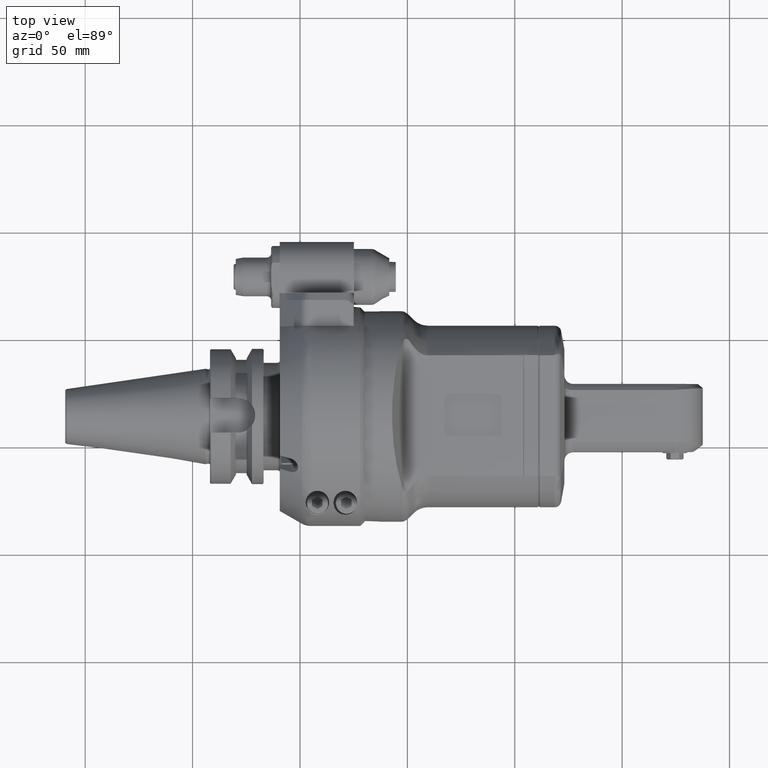
[diagram: clean part render]
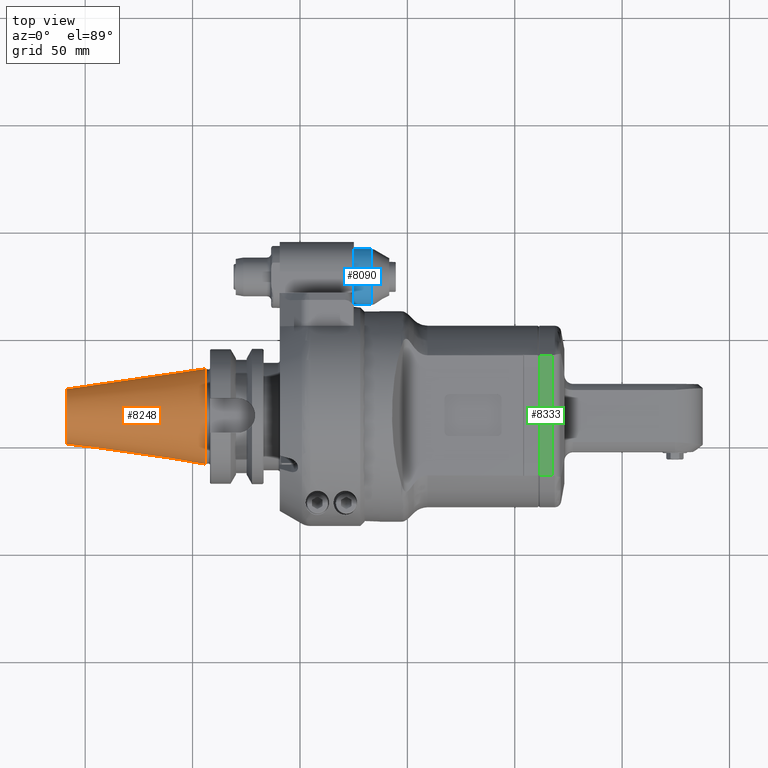
[diagram: same view with three faces highlighted in distinct colors, each labeled with its STEP entity id]
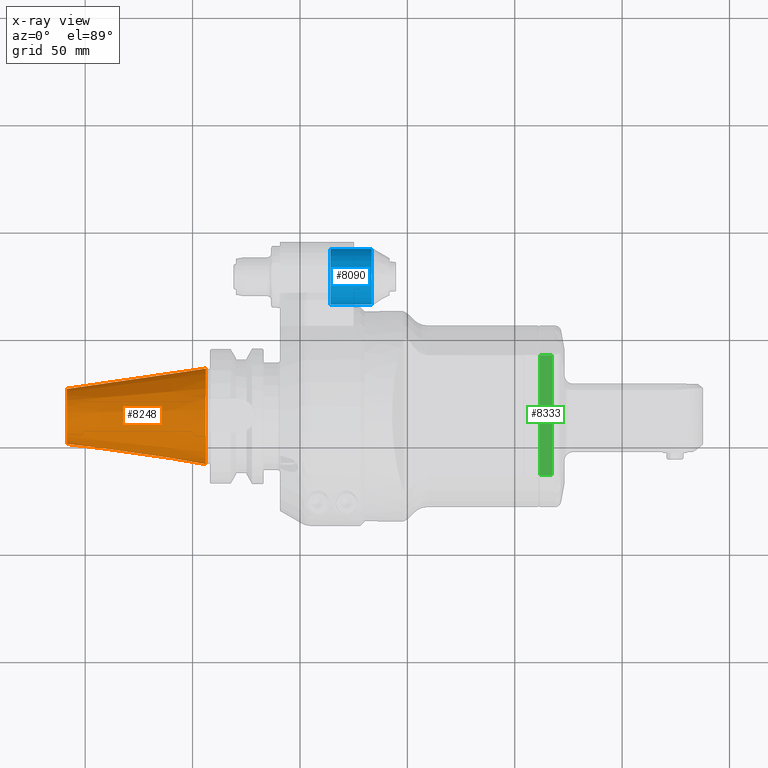
[diagram: x-ray of the same camera — body ghosted, the three highlighted faces saturated]
A machine part, top view with three faces highlighted in distinct colors.
The next image is the same camera in x-ray (body ghosted, the three faces saturated) — at least one of them is partly hidden behind the body in this view.
Their STEP definitions:

[orange] entity #8248 — the highlighted conical surface has half-angle 8.297 deg.
#580=CONICAL_SURFACE('',#9024,0.689710517879134,0.144812411498922);
#908=FACE_OUTER_BOUND('',#1442,.T.);
#1442=EDGE_LOOP('',(#6908,#6909,#6910,#6911,#6912));
#1876=CIRCLE('',#9022,0.875);
#1877=CIRCLE('',#9023,0.875);
#1878=CIRCLE('',#9025,0.504421035757874);
#2516=LINE('',#44177,#3098);
#3098=VECTOR('',#10782,0.689710517879134);
#3831=VERTEX_POINT('',#44170);
#3832=VERTEX_POINT('',#44171);
#3833=VERTEX_POINT('',#44176);
#4903=EDGE_CURVE('',#3831,#3832,#1876,.T.);
#4904=EDGE_CURVE('',#3832,#3831,#1877,.T.);
#4906=EDGE_CURVE('',#3832,#3833,#2516,.T.);
#4907=EDGE_CURVE('',#3833,#3833,#1878,.T.);
#6908=ORIENTED_EDGE('',*,*,#4903,.F.);
#6909=ORIENTED_EDGE('',*,*,#4904,.F.);
#6910=ORIENTED_EDGE('',*,*,#4906,.T.);
#6911=ORIENTED_EDGE('',*,*,#4907,.F.);
#6912=ORIENTED_EDGE('',*,*,#4906,.F.);
#8248=ADVANCED_FACE('',(#908),#580,.T.);
#9022=AXIS2_PLACEMENT_3D('',#44172,#10775,#10776);
#9023=AXIS2_PLACEMENT_3D('',#44173,#10777,#10778);
#9024=AXIS2_PLACEMENT_3D('',#44175,#10780,#10781);
#9025=AXIS2_PLACEMENT_3D('',#44178,#10783,#10784);
#10775=DIRECTION('center_axis',(1.,0.,0.));
#10776=DIRECTION('ref_axis',(0.,1.,0.));
#10777=DIRECTION('center_axis',(1.,0.,0.));
#10778=DIRECTION('ref_axis',(0.,1.,0.));
#10780=DIRECTION('center_axis',(1.,0.,0.));
#10781=DIRECTION('ref_axis',(0.,-1.,0.));
#10782=DIRECTION('',(-0.98953299358046,-0.144306807239621,-1.76724869581176E-17));
#10783=DIRECTION('center_axis',(-1.,0.,0.));
#10784=DIRECTION('ref_axis',(0.,1.,0.));
#44170=CARTESIAN_POINT('',(-3.38582677165354,-0.875,0.));
#44171=CARTESIAN_POINT('',(-3.38582677165357,0.875000000000156,1.07156594925412E-16));
#44172=CARTESIAN_POINT('Origin',(-3.38582677165354,0.,0.));
#44173=CARTESIAN_POINT('Origin',(-3.38582677165354,0.,0.));
#44175=CARTESIAN_POINT('Origin',(-4.6563839922685,0.,0.));
#44176=CARTESIAN_POINT('',(-5.92694121288189,0.504421035757874,0.));
#44177=CARTESIAN_POINT('',(-4.6563839922685,0.689710517879134,8.44651778058945E-17));
#44178=CARTESIAN_POINT('Origin',(-5.92694121288189,0.,0.));

[blue] entity #8090 — the highlighted cylindrical surface (bore or boss wall) has radius 13 mm, axis along (1, 0, 0).
#750=FACE_OUTER_BOUND('',#1265,.T.);
#1265=EDGE_LOOP('',(#6133,#6134,#6135,#6136,#6137));
#1756=CIRCLE('',#8752,0.511811023622047);
#1757=CIRCLE('',#8754,0.511811023622047);
#1758=CIRCLE('',#8755,0.511811023622047);
#2366=LINE('',#12946,#2948);
#2948=VECTOR('',#10094,0.511811023622047);
#3580=VERTEX_POINT('',#12939);
#3581=VERTEX_POINT('',#12942);
#3582=VERTEX_POINT('',#12943);
#4518=EDGE_CURVE('',#3580,#3580,#1756,.T.);
#4519=EDGE_CURVE('',#3581,#3582,#1757,.T.);
#4520=EDGE_CURVE('',#3582,#3581,#1758,.T.);
#4521=EDGE_CURVE('',#3582,#3580,#2366,.T.);
#6133=ORIENTED_EDGE('',*,*,#4519,.F.);
#6134=ORIENTED_EDGE('',*,*,#4520,.F.);
#6135=ORIENTED_EDGE('',*,*,#4521,.T.);
#6136=ORIENTED_EDGE('',*,*,#4518,.F.);
#6137=ORIENTED_EDGE('',*,*,#4521,.F.);
#7854=CYLINDRICAL_SURFACE('',#8753,0.511811023622047);
#8090=ADVANCED_FACE('',(#750),#7854,.T.);
#8752=AXIS2_PLACEMENT_3D('',#12940,#10086,#10087);
#8753=AXIS2_PLACEMENT_3D('',#12941,#10088,#10089);
#8754=AXIS2_PLACEMENT_3D('',#12944,#10090,#10091);
#8755=AXIS2_PLACEMENT_3D('',#12945,#10092,#10093);
#10086=DIRECTION('center_axis',(-1.,0.,0.));
#10087=DIRECTION('ref_axis',(0.,1.,0.));
#10088=DIRECTION('center_axis',(1.,0.,0.));
#10089=DIRECTION('ref_axis',(0.,1.,0.));
#10090=DIRECTION('center_axis',(1.,0.,0.));
#10091=DIRECTION('ref_axis',(0.,-1.,0.));
#10092=DIRECTION('center_axis',(1.,0.,0.));
#10093=DIRECTION('ref_axis',(0.,-1.,0.));
#10094=DIRECTION('',(-1.,0.,0.));
#12939=CARTESIAN_POINT('',(-1.10236220472441,2.04724409448819,-6.26787731847071E-17));
#12940=CARTESIAN_POINT('Origin',(-1.10236220472441,2.55905511811024,0.));
#12941=CARTESIAN_POINT('Origin',(-0.669291338582677,2.55905511811024,0.));
#12942=CARTESIAN_POINT('',(-0.34660817233437,3.07086614173228,0.));
#12943=CARTESIAN_POINT('',(-0.34660817233437,2.04724409448819,-6.26787731847071E-17));
#12944=CARTESIAN_POINT('Origin',(-0.34660817233437,2.55905511811024,0.));
#12945=CARTESIAN_POINT('Origin',(-0.34660817233437,2.55905511811024,0.));
#12946=CARTESIAN_POINT('',(-0.669291338582677,2.04724409448819,-6.26787731847071E-17));

[green] entity #8333 — the highlighted planar face has unit normal (-0, 0, -1).
#465=PLANE('',#9201);
#993=FACE_OUTER_BOUND('',#1539,.T.);
#1539=EDGE_LOOP('',(#7333,#7334,#7335,#7336));
#2592=LINE('',#45069,#3174);
#2593=LINE('',#45074,#3175);
#2595=LINE('',#45116,#3177);
#2596=LINE('',#45124,#3178);
#3174=VECTOR('',#11190,2.20226240487362);
#3175=VECTOR('',#11197,0.227995318357402);
#3177=VECTOR('',#11211,2.20226240487362);
#3178=VECTOR('',#11214,0.227995318357402);
#3985=VERTEX_POINT('',#45063);
#3986=VERTEX_POINT('',#45067);
#3987=VERTEX_POINT('',#45073);
#3991=VERTEX_POINT('',#45115);
#5125=EDGE_CURVE('',#3986,#3985,#2592,.T.);
#5127=EDGE_CURVE('',#3986,#3987,#2593,.T.);
#5135=EDGE_CURVE('',#3987,#3991,#2595,.T.);
#5137=EDGE_CURVE('',#3991,#3985,#2596,.T.);
#7333=ORIENTED_EDGE('',*,*,#5125,.T.);
#7334=ORIENTED_EDGE('',*,*,#5137,.F.);
#7335=ORIENTED_EDGE('',*,*,#5135,.F.);
#7336=ORIENTED_EDGE('',*,*,#5127,.F.);
#8333=ADVANCED_FACE('',(#993),#465,.F.);
#9201=AXIS2_PLACEMENT_3D('',#45125,#11215,#11216);
#11190=DIRECTION('',(0.,-1.,0.));
#11197=DIRECTION('',(1.,0.,0.));
#11211=DIRECTION('',(0.,-1.,0.));
#11214=DIRECTION('',(-1.,0.,0.));
#11215=DIRECTION('center_axis',(0.,0.,-1.));
#11216=DIRECTION('ref_axis',(1.,0.,0.));
#45063=CARTESIAN_POINT('',(2.73622047244094,-1.10113120243661,1.25984251968504));
#45067=CARTESIAN_POINT('',(2.73622047244094,1.10113120243661,1.25984251968504));
#45069=CARTESIAN_POINT('',(2.73622047244094,1.10113120243661,1.25984251968504));
#45073=CARTESIAN_POINT('',(2.96421579079843,1.10113120243661,1.25984251968504));
#45074=CARTESIAN_POINT('',(2.73622047244094,1.10113120243661,1.25984251968504));
#45115=CARTESIAN_POINT('',(2.96421579079843,-1.10113120243661,1.25984251968504));
#45116=CARTESIAN_POINT('',(2.96421579079843,1.10113120243661,1.25984251968504));
#45124=CARTESIAN_POINT('',(2.96421579079843,-1.10113120243661,1.25984251968504));
#45125=CARTESIAN_POINT('Origin',(1.2992125984252,-2.90923961344882,1.25984251968504));